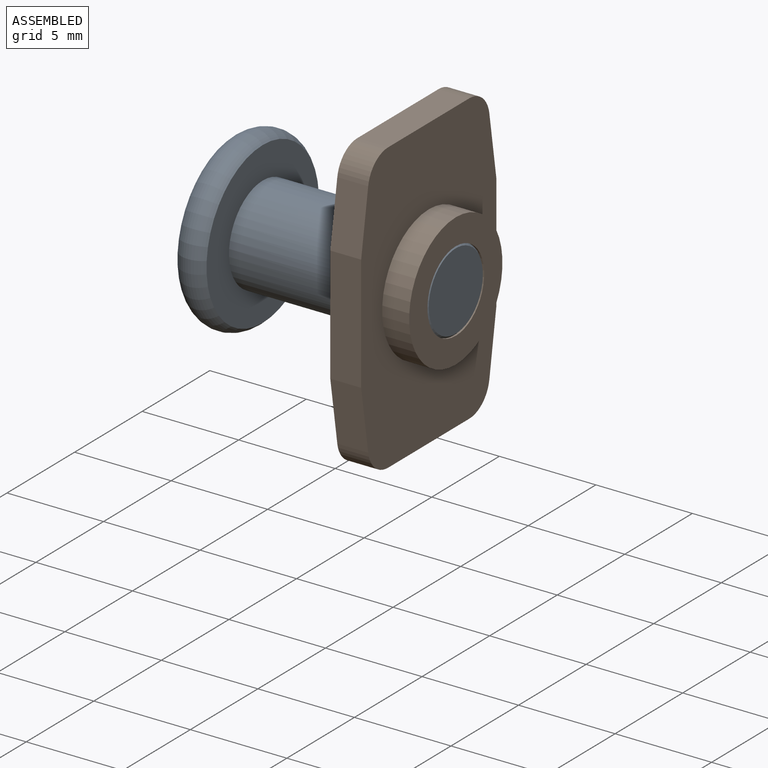
[diagram: assembled view]
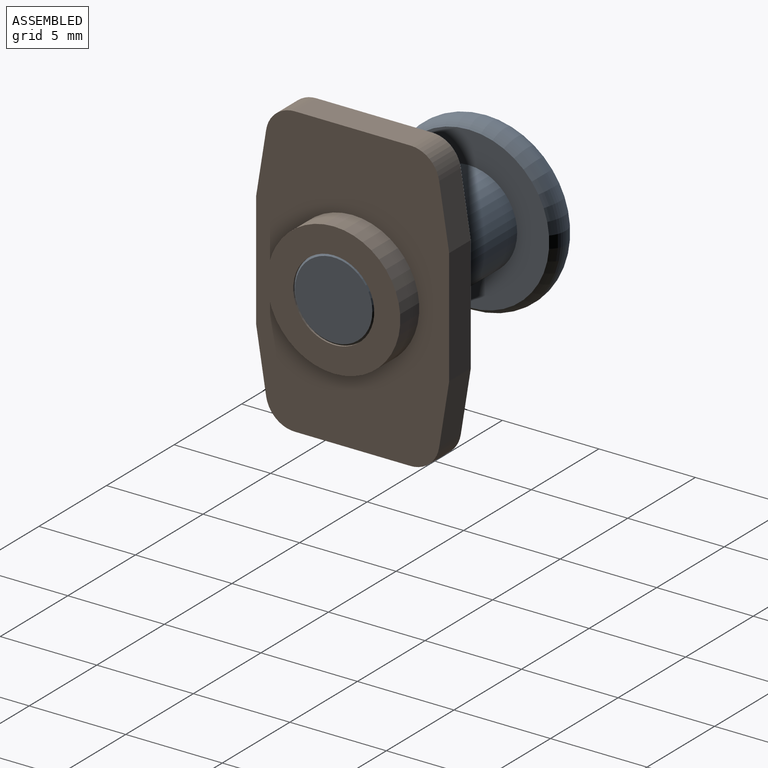
[diagram: assembled view, second angle]
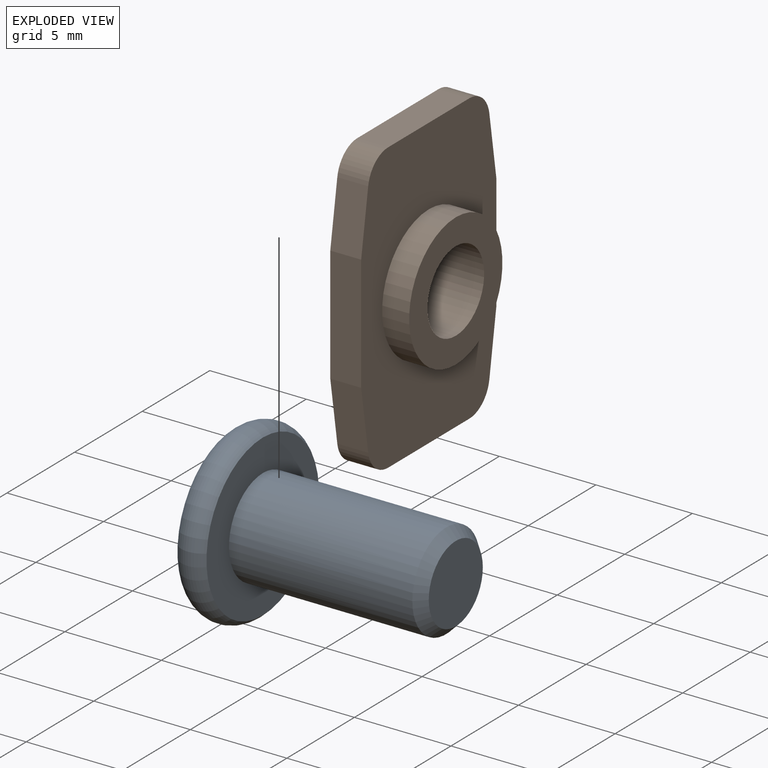
[diagram: exploded view]
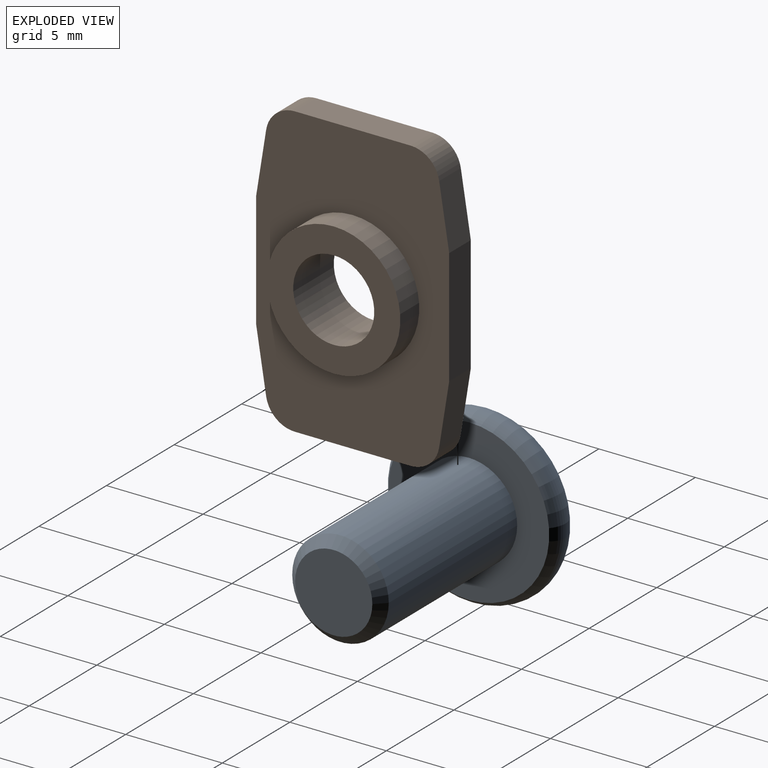
[diagram: exploded view, second angle]
ASSEMBLY  parts=2 mates=2
PART A: 14 faces, bbox 11.8x9.7x9.7 mm
  f0: cone r=1.78mm half-angle=45deg, axis (-1,0,0), area 3.1mm2, adj f5,f8,f9,f10,f11,f12,f13
  f1: torus R=3.5mm, axis (1,0,0), area 46.7mm2, adj f5,f6
  f2: cone r=2mm half-angle=45deg, axis (-1,0,0), area 10mm2, adj f3,f4
  f3: cylinder r=2.5mm len=9.5mm, axis (1,0,0), area 149.2mm2, adj f2,f6
  f4: plane 4x4mm, normal (1,0,0), area 12.6mm2, adj f2
  f5: plane 8.32x8.32mm, normal (-1,0,0), area 44.4mm2, adj f0,f1
  f6: plane 8.32x8.32mm, normal (1,0,0), area 34.8mm2, adj f1,f3
  f7: plane 3.46x3mm, normal (-1,0,0), area 7.8mm2, adj f8,f9,f10,f11,f12,f13
  f8: plane 2.25x1.5mm, normal (0,-0.5,-0.87), area 3.6mm2, adj f0,f7,f9,f13
  f9: plane 2.25x1.73mm, normal (0,-1,0), area 3.6mm2, adj f0,f7,f8,f10
  f10: plane 2.25x1.5mm, normal (0,-0.5,0.87), area 3.6mm2, adj f0,f7,f9,f11
  f11: plane 2.25x1.5mm, normal (0,0.5,0.87), area 3.6mm2, adj f0,f7,f10,f12
  f12: plane 2.25x1.73mm, normal (0,1,0), area 3.6mm2, adj f0,f7,f11,f13
  f13: plane 2.25x1.5mm, normal (0,0.5,-0.87), area 3.6mm2, adj f0,f7,f8,f12
PART B: 17 faces, bbox 15x3x10 mm
  f0: cylinder r=2.1mm len=4.2mm, axis (0,-1,0), area 39.6mm2, adj f15,f16
  f1: cylinder r=3.45mm len=6.9mm, axis (0,1,0), area 30.3mm2, adj f2,f16
  f2: plane 15x10mm, normal (0,-1,0), area 104.8mm2, adj f1,f3,f4,f5,f6,f7,f8,f9
  f3: cylinder r=1.5mm len=1.6mm, axis (0,1,0), area 3.4mm2, adj f2,f4,f14,f15
  f4: plane 3.24x1.6mm, normal (0.16,0,0.99), area 5.2mm2, adj f2,f3,f5,f15
  f5: plane 6x1.6mm, normal (0,0,1), area 9.6mm2, adj f2,f4,f6,f15
  f6: plane 3.24x1.6mm, normal (-0.16,0,0.99), area 5.2mm2, adj f2,f5,f7,f15
  f7: cylinder r=1.5mm len=1.6mm, axis (0,1,0), area 3.4mm2, adj f2,f6,f8,f15
  f8: plane 6x1.6mm, normal (-1,0,0), area 9.6mm2, adj f2,f7,f9,f15
  f9: cylinder r=1.5mm len=1.6mm, axis (0,1,0), area 3.4mm2, adj f2,f8,f10,f15
  f10: plane 3.24x1.6mm, normal (-0.16,0,-0.99), area 5.2mm2, adj f2,f9,f11,f15
  f11: plane 6x1.6mm, normal (0,0,-1), area 9.6mm2, adj f2,f10,f12,f15
  f12: plane 3.24x1.6mm, normal (0.16,0,-0.99), area 5.2mm2, adj f2,f11,f13,f15
  f13: cylinder r=1.5mm len=1.6mm, axis (0,1,0), area 3.4mm2, adj f2,f12,f14,f15
  f14: plane 6x1.6mm, normal (1,0,0), area 9.6mm2, adj f2,f3,f13,f15
  f15: plane 15x10mm, normal (0,1,0), area 128.3mm2, adj f0,f3,f4,f5,f6,f7,f8,f9
  f16: plane 6.9x6.9mm, normal (0,-1,0), area 23.5mm2, adj f0,f1
PLACE A t=(-5.25,0,0)mm
PLACE B rot(axis=(-0.58,0.58,0.58),120deg) t=(-6.25,0,0)mm
MATE cylindrical B.f0 <-> A.f2  axis (-1,0,0) through (-3.25,0,0)mm
MATE planar B.f0 <-> A.f2  axis (1,0,0) through (-3.25,0,0)mm
